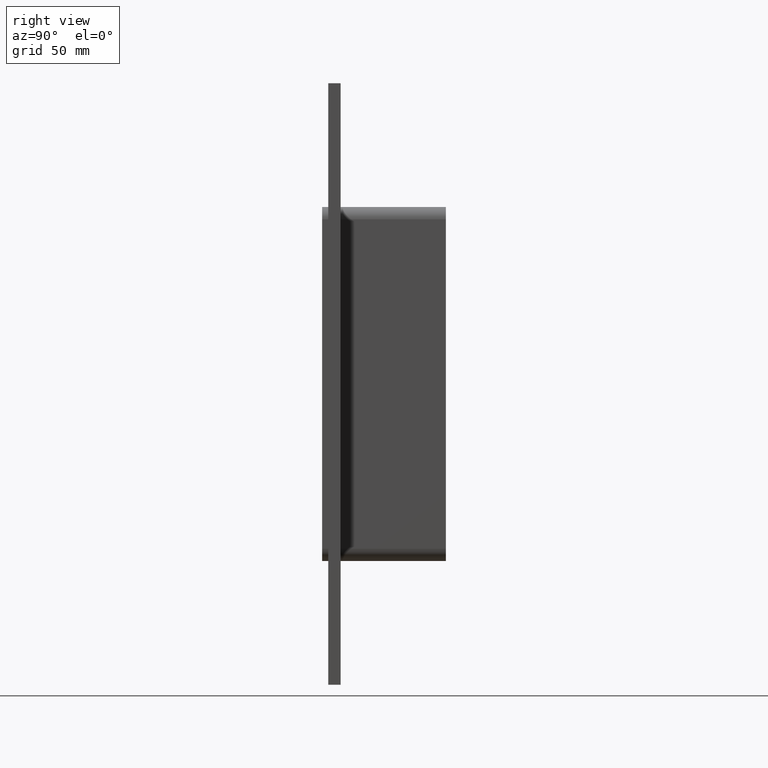
[diagram: clean part render]
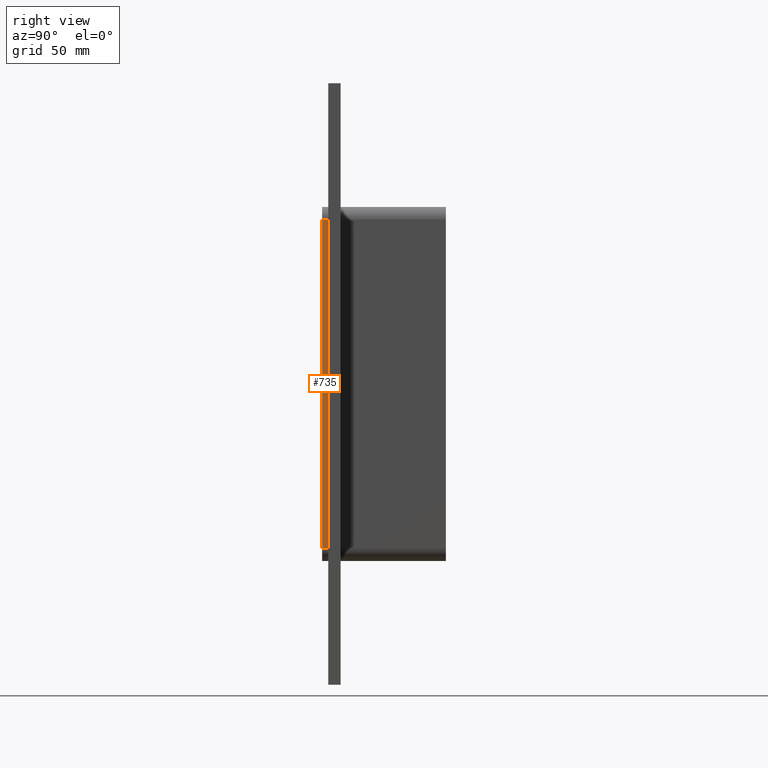
[diagram: same view with one face highlighted and labeled with its STEP entity id]
A machine part, right view. The second image highlights one B-rep face of the part: STEP entity #735.
In plain terms, the highlighted planar face has unit normal (1, 0, 0).
Its self-contained STEP definition (entity closure, byte-faithful):
#440=CARTESIAN_POINT('',(36.25,0.0,79.750000000000028));
#441=VERTEX_POINT('',#440);
#449=CARTESIAN_POINT('',(36.25,0.0,-79.750000000000043));
#450=VERTEX_POINT('',#449);
#451=CARTESIAN_POINT('',(36.25,0.0,-79.750000000000028));
#452=DIRECTION('',(0.0,0.0,1.0));
#453=VECTOR('',#452,159.50000000000006);
#454=LINE('',#451,#453);
#455=EDGE_CURVE('',#450,#441,#454,.T.);
#606=CARTESIAN_POINT('',(36.25,-3.0,-79.750000000000057));
#607=VERTEX_POINT('',#606);
#608=CARTESIAN_POINT('',(36.25,0.0,-79.750000000000043));
#609=DIRECTION('',(0.0,-1.0,0.0));
#610=VECTOR('',#609,3.0);
#611=LINE('',#608,#610);
#612=EDGE_CURVE('',#450,#607,#611,.T.);
#712=CARTESIAN_POINT('',(36.25,0.0,85.75));
#713=DIRECTION('',(1.0,0.0,0.0));
#714=DIRECTION('',(0.0,0.0,-1.0));
#715=AXIS2_PLACEMENT_3D('',#712,#713,#714);
#716=PLANE('',#715);
#717=ORIENTED_EDGE('',*,*,#455,.T.);
#718=CARTESIAN_POINT('',(36.25,-3.0,79.750000000000028));
#719=VERTEX_POINT('',#718);
#720=CARTESIAN_POINT('',(36.25,-3.0,79.750000000000028));
#721=DIRECTION('',(0.0,1.0,0.0));
#722=VECTOR('',#721,3.0);
#723=LINE('',#720,#722);
#724=EDGE_CURVE('',#719,#441,#723,.T.);
#725=ORIENTED_EDGE('',*,*,#724,.F.);
#726=CARTESIAN_POINT('',(36.25,-3.0,-79.750000000000057));
#727=DIRECTION('',(0.0,0.0,1.0));
#728=VECTOR('',#727,159.50000000000009);
#729=LINE('',#726,#728);
#730=EDGE_CURVE('',#607,#719,#729,.T.);
#731=ORIENTED_EDGE('',*,*,#730,.F.);
#732=ORIENTED_EDGE('',*,*,#612,.F.);
#733=EDGE_LOOP('',(#717,#725,#731,#732));
#734=FACE_OUTER_BOUND('',#733,.T.);
#735=ADVANCED_FACE('',(#734),#716,.T.);